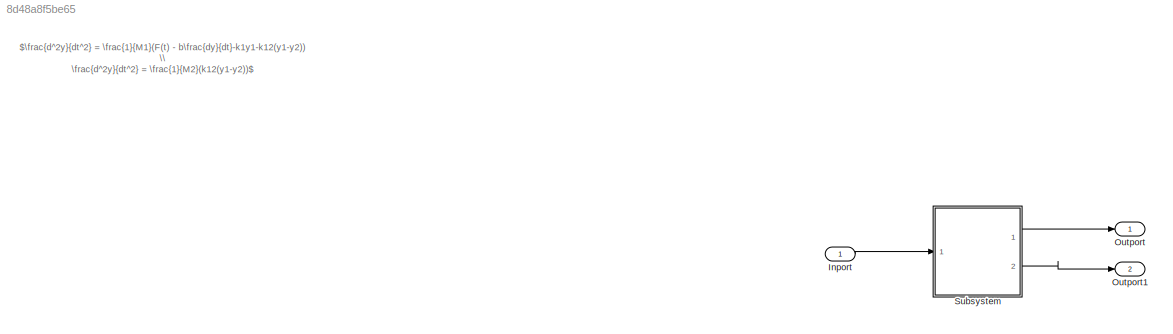
MODEL slx_8d48a8f5be65
KIND model
CONFIG AbsTol = auto
CONFIG EnableMultiTasking = off
CONFIG FixedStep = auto
CONFIG MaxStep = auto
CONFIG MinStep = auto
CONFIG RelTol = 1e-3
CONFIG SampleTimeConstraint = Unconstrained
CONFIG SolverName = VariableStepAuto
CONFIG StartTime = 0.0
CONFIG StopTime = 50
BLOCK [Inport] Inport
BLOCK [Outport] Outport
BLOCK [Outport] Outport1
  Port = 2
BLOCK [ModelReference] Subsystem
  ModelNameDialog = Subsystem
  ModelReferenceVersion = 1.3
  Ports = [1, 2]
ANNOTATION (root): $\frac{d^2y}{dt^2} = \frac{1}{M1}(F(t) - b\frac{dy}{dt}-k1y1-k12(y1-y2)) \\ \frac{d^2y}{dt^2} = \frac{1}{M2}(k12(y1-y2))$
LINE Inport:1 -> Subsystem:1
LINE Subsystem:1 -> Outport:1
LINE Subsystem:2 -> Outport1:1
